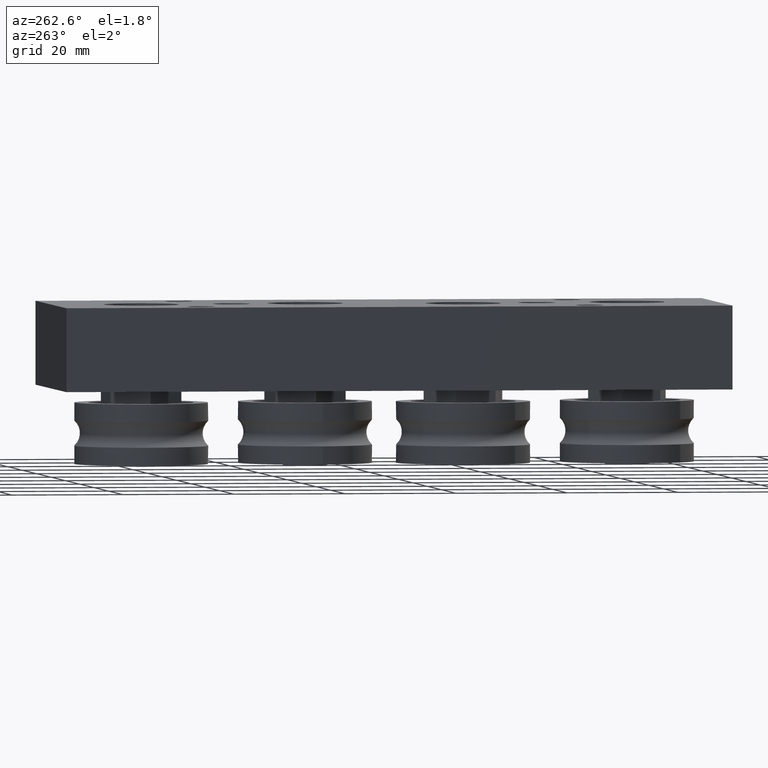
[diagram: clean part render]
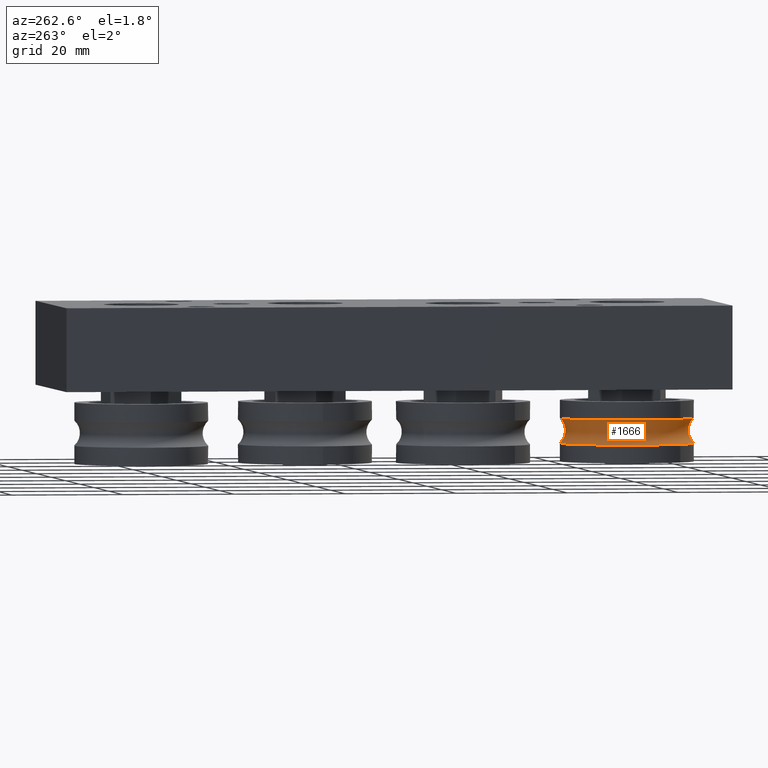
[diagram: same view with one face highlighted and labeled with its STEP entity id]
A machine part, auxiliary view. The second image highlights one B-rep face of the part: STEP entity #1666.
In plain terms, the highlighted toroidal blend (fillet) surface has major radius 14 mm and minor (blend) radius 3 mm.
Its self-contained STEP definition (entity closure, byte-faithful):
#87=TOROIDAL_SURFACE('',#2059,14.,3.);
#504=FACE_OUTER_BOUND('',#648,.T.);
#648=EDGE_LOOP('',(#1426,#1427,#1428,#1429,#1430,#1431));
#749=CIRCLE('',#2057,12.);
#750=CIRCLE('',#2058,12.);
#751=CIRCLE('',#2060,3.);
#752=CIRCLE('',#2061,12.);
#753=CIRCLE('',#2062,12.);
#878=VERTEX_POINT('',#3020);
#879=VERTEX_POINT('',#3021);
#880=VERTEX_POINT('',#3026);
#881=VERTEX_POINT('',#3028);
#1066=EDGE_CURVE('',#878,#879,#749,.T.);
#1068=EDGE_CURVE('',#879,#878,#750,.T.);
#1069=EDGE_CURVE('',#879,#880,#751,.T.);
#1070=EDGE_CURVE('',#881,#880,#752,.T.);
#1071=EDGE_CURVE('',#880,#881,#753,.T.);
#1426=ORIENTED_EDGE('',*,*,#1066,.T.);
#1427=ORIENTED_EDGE('',*,*,#1069,.T.);
#1428=ORIENTED_EDGE('',*,*,#1070,.F.);
#1429=ORIENTED_EDGE('',*,*,#1071,.F.);
#1430=ORIENTED_EDGE('',*,*,#1069,.F.);
#1431=ORIENTED_EDGE('',*,*,#1068,.T.);
#1666=ADVANCED_FACE('',(#504),#87,.F.);
#2057=AXIS2_PLACEMENT_3D('',#3022,#2517,#2518);
#2058=AXIS2_PLACEMENT_3D('',#3024,#2520,#2521);
#2059=AXIS2_PLACEMENT_3D('',#3025,#2522,#2523);
#2060=AXIS2_PLACEMENT_3D('',#3027,#2524,#2525);
#2061=AXIS2_PLACEMENT_3D('',#3029,#2526,#2527);
#2062=AXIS2_PLACEMENT_3D('',#3030,#2528,#2529);
#2517=DIRECTION('center_axis',(1.,0.,0.));
#2518=DIRECTION('ref_axis',(0.,1.,0.));
#2520=DIRECTION('center_axis',(1.,0.,0.));
#2521=DIRECTION('ref_axis',(0.,1.,0.));
#2522=DIRECTION('center_axis',(1.,0.,0.));
#2523=DIRECTION('ref_axis',(0.,0.,-1.));
#2524=DIRECTION('center_axis',(0.,-1.,-1.22464679914735E-16));
#2525=DIRECTION('ref_axis',(0.,-1.22464679914735E-16,1.));
#2526=DIRECTION('center_axis',(1.,0.,0.));
#2527=DIRECTION('ref_axis',(0.,1.,0.));
#2528=DIRECTION('center_axis',(1.,0.,0.));
#2529=DIRECTION('ref_axis',(0.,1.,0.));
#3020=CARTESIAN_POINT('',(-2.23606797749979,-12.,-1.46957615897682E-15));
#3021=CARTESIAN_POINT('',(-2.23606797749979,-1.46957615897682E-15,12.));
#3022=CARTESIAN_POINT('Origin',(-2.23606797749979,0.,0.));
#3024=CARTESIAN_POINT('Origin',(-2.23606797749979,0.,0.));
#3025=CARTESIAN_POINT('Origin',(0.,0.,0.));
#3026=CARTESIAN_POINT('',(2.23606797749979,-1.46957615897682E-15,12.));
#3027=CARTESIAN_POINT('Origin',(0.,-1.71450551880629E-15,14.));
#3028=CARTESIAN_POINT('',(2.23606797749979,-12.,-1.46957615897682E-15));
#3029=CARTESIAN_POINT('Origin',(2.23606797749979,0.,0.));
#3030=CARTESIAN_POINT('Origin',(2.23606797749979,0.,0.));